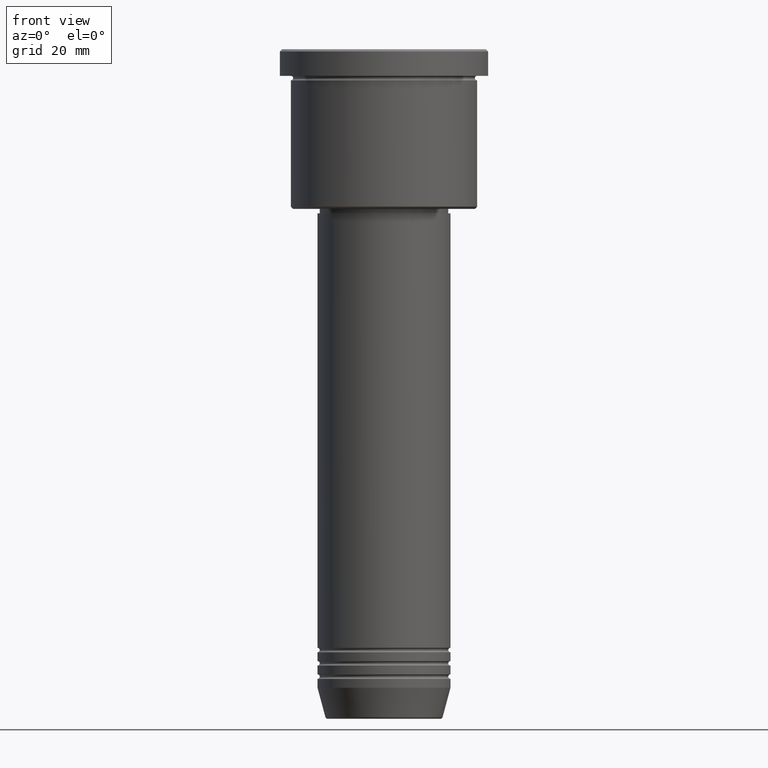
[diagram: clean part render]
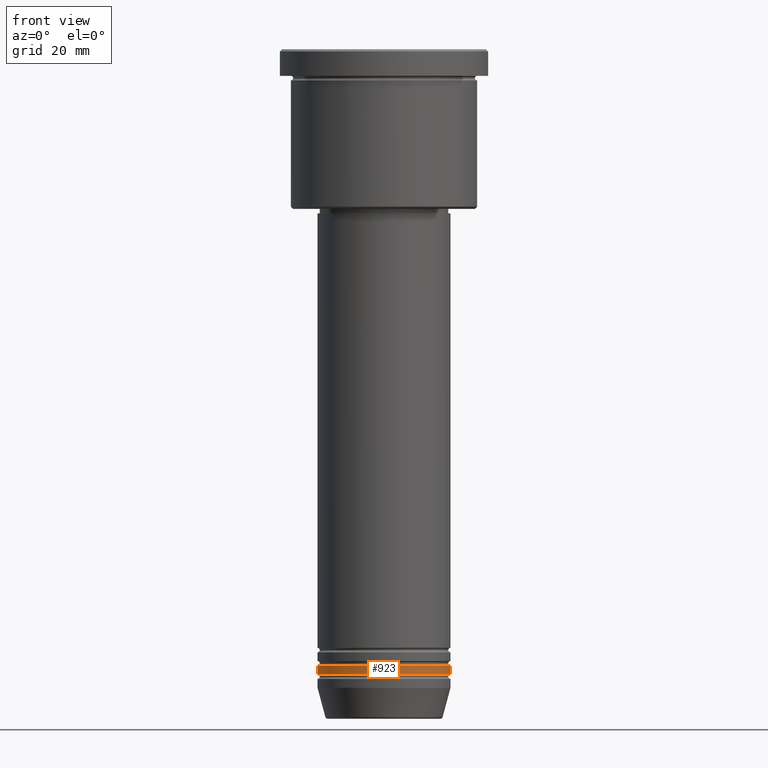
[diagram: same view with one face highlighted and labeled with its STEP entity id]
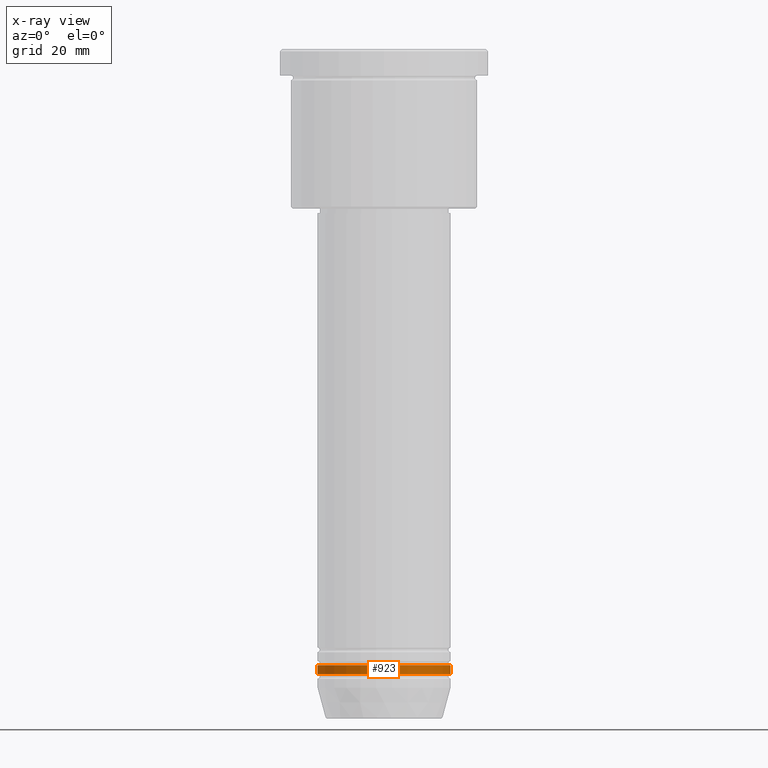
[diagram: x-ray of the same camera — body ghosted, the highlighted face saturated]
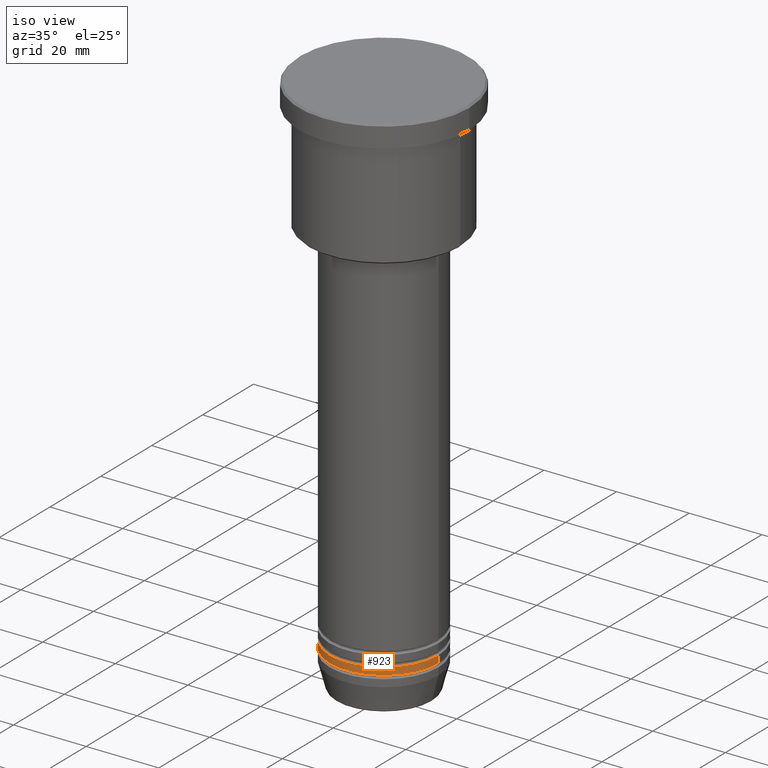
[diagram: same view with one face highlighted and labeled with its STEP entity id]
A machine part, front view. The second image highlights one B-rep face of the part: STEP entity #923.
The next image is the same camera in x-ray: the body ghosted, the highlighted face saturated — about 0% of this face is hidden behind the body in this view.
A second angle (iso view) of the same face is appended — the face is thin or edge-on in the first view.
In plain terms, the highlighted cylindrical surface (partial cylindrical patch) has radius 15 mm, axis along (-0, -0, 1).
Its self-contained STEP definition (entity closure, byte-faithful):
#4 = CARTESIAN_POINT ( 'NONE',  ( 15.00000000000000000, 0.000000000000000000, -138.9999999999999716 ) ) ;
#6 = CARTESIAN_POINT ( 'NONE',  ( 0.000000000000000000, 0.000000000000000000, -141.0000000000000000 ) ) ;
#8 = CARTESIAN_POINT ( 'NONE',  ( 0.000000000000000000, 0.000000000000000000, -138.9999999999999716 ) ) ;
#14 = DIRECTION ( 'NONE',  ( 1.000000000000000000, 0.000000000000000000, 0.000000000000000000 ) ) ;
#81 = CARTESIAN_POINT ( 'NONE',  ( -15.00000000000000000, 1.836970198721029589E-15, -141.0000000000000000 ) ) ;
#116 = CIRCLE ( 'NONE', #168, 15.00000000000000000 ) ;
#165 = VERTEX_POINT ( 'NONE', #4 ) ;
#168 = AXIS2_PLACEMENT_3D ( 'NONE', #8, #281, #14 ) ;
#220 = ORIENTED_EDGE ( 'NONE', *, *, #653, .F. ) ;
#281 = DIRECTION ( 'NONE',  ( -0.000000000000000000, -0.000000000000000000, 1.000000000000000000 ) ) ;
#297 = VERTEX_POINT ( 'NONE', #453 ) ;
#312 = VERTEX_POINT ( 'NONE', #81 ) ;
#363 = EDGE_CURVE ( 'NONE', #297, #165, #116, .T. ) ;
#376 = DIRECTION ( 'NONE',  ( 1.000000000000000000, 0.000000000000000000, 0.000000000000000000 ) ) ;
#382 = LINE ( 'NONE', #908, #441 ) ;
#428 = EDGE_CURVE ( 'NONE', #434, #165, #382, .T. ) ;
#434 = VERTEX_POINT ( 'NONE', #1001 ) ;
#441 = VECTOR ( 'NONE', #556, 1000.000000000000000 ) ;
#453 = CARTESIAN_POINT ( 'NONE',  ( -15.00000000000000000, 1.836970198721029589E-15, -138.9999999999999716 ) ) ;
#471 = DIRECTION ( 'NONE',  ( -0.000000000000000000, -0.000000000000000000, 1.000000000000000000 ) ) ;
#509 = ORIENTED_EDGE ( 'NONE', *, *, #824, .T. ) ;
#522 = VECTOR ( 'NONE', #794, 1000.000000000000000 ) ;
#556 = DIRECTION ( 'NONE',  ( -0.000000000000000000, -0.000000000000000000, 1.000000000000000000 ) ) ;
#583 = CIRCLE ( 'NONE', #837, 15.00000000000000000 ) ;
#585 = FACE_OUTER_BOUND ( 'NONE', #1153, .T. ) ;
#615 = LINE ( 'NONE', #627, #522 ) ;
#616 = ORIENTED_EDGE ( 'NONE', *, *, #428, .T. ) ;
#627 = CARTESIAN_POINT ( 'NONE',  ( -15.00000000000000000, 1.836970198721029589E-15, 0.000000000000000000 ) ) ;
#653 = EDGE_CURVE ( 'NONE', #312, #297, #615, .T. ) ;
#742 = DIRECTION ( 'NONE',  ( 1.000000000000000000, 0.000000000000000000, 0.000000000000000000 ) ) ;
#794 = DIRECTION ( 'NONE',  ( -0.000000000000000000, -0.000000000000000000, 1.000000000000000000 ) ) ;
#824 = EDGE_CURVE ( 'NONE', #312, #434, #583, .T. ) ;
#837 = AXIS2_PLACEMENT_3D ( 'NONE', #6, #471, #376 ) ;
#908 = CARTESIAN_POINT ( 'NONE',  ( 15.00000000000000000, 0.000000000000000000, 0.000000000000000000 ) ) ;
#923 = ADVANCED_FACE ( 'NONE', ( #585 ), #937, .T. ) ;
#928 = DIRECTION ( 'NONE',  ( -0.000000000000000000, -0.000000000000000000, 1.000000000000000000 ) ) ;
#937 = CYLINDRICAL_SURFACE ( 'NONE', #1182, 15.00000000000000000 ) ;
#966 = ORIENTED_EDGE ( 'NONE', *, *, #363, .F. ) ;
#1001 = CARTESIAN_POINT ( 'NONE',  ( 15.00000000000000000, 0.000000000000000000, -141.0000000000000000 ) ) ;
#1103 = CARTESIAN_POINT ( 'NONE',  ( 0.000000000000000000, 0.000000000000000000, 0.000000000000000000 ) ) ;
#1153 = EDGE_LOOP ( 'NONE', ( #220, #509, #616, #966 ) ) ;
#1182 = AXIS2_PLACEMENT_3D ( 'NONE', #1103, #928, #742 ) ;